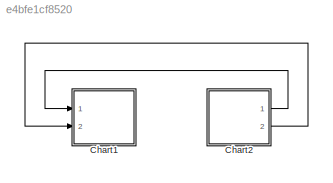
MODEL slx_e4bfe1cf8520
KIND model
CONFIG AbsTol = auto
CONFIG EnableMultiTasking = off
CONFIG FixedStep = auto
CONFIG MaxStep = auto
CONFIG MinStep = auto
CONFIG RelTol = 1e-3
CONFIG SampleTimeConstraint = Unconstrained
CONFIG Solver = VariableStepAuto
CONFIG SolverName = VariableStepAuto
CONFIG StartTime = 0.0
CONFIG StopTime = 0.6
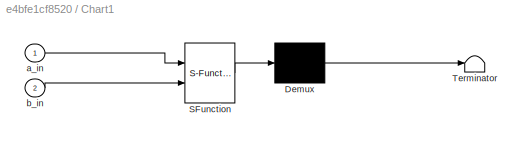
BLOCK [SubSystem] Chart1
  ErrorFcn = Stateflow.Translate.translate
  PermitHierarchicalResolution = ExplicitOnly
  Ports = [2]
  RequestExecContextInheritance = off
  SFBlockType = Chart
  TreatAsAtomicUnit = on
BLOCK [Demux] Chart1/ Demux 
  Outputs = 1
  Ports = [1, 1]
BLOCK [S-Function] Chart1/ SFunction 
  EnableBusSupport = on
  FunctionName = sf_sfun
  PortCounts = [2 1]
  Ports = [2, 1]
  SFcnIsStateOwnerBlock = off
  SFunctionDeploymentMode = off
  Tag = Stateflow S-Function 1
BLOCK [Terminator] Chart1/ Terminator 
BLOCK [Inport] Chart1/a_in
BLOCK [Inport] Chart1/b_in
  Port = 2
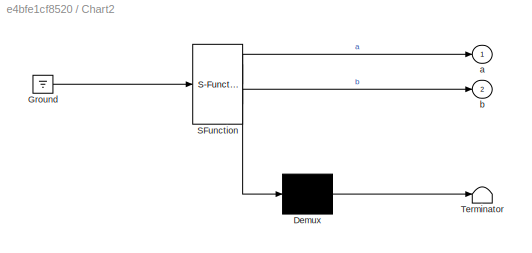
BLOCK [SubSystem] Chart2
  ErrorFcn = Stateflow.Translate.translate
  PermitHierarchicalResolution = ExplicitOnly
  Ports = [0, 2]
  RequestExecContextInheritance = off
  SFBlockType = Chart
  TreatAsAtomicUnit = on
BLOCK [Demux] Chart2/ Demux 
  Outputs = 1
  Ports = [1, 1]
BLOCK [Ground] Chart2/ Ground 
BLOCK [S-Function] Chart2/ SFunction 
  EnableBusSupport = on
  FunctionName = sf_sfun
  PortCounts = [1 3]
  Ports = [1, 3]
  SFcnIsStateOwnerBlock = off
  SFunctionDeploymentMode = off
  Tag = Stateflow S-Function 3
BLOCK [Terminator] Chart2/ Terminator 
BLOCK [Outport] Chart2/a
  VectorParamsAs1DForOutWhenUnconnected = off
BLOCK [Outport] Chart2/b
  Port = 2
  VectorParamsAs1DForOutWhenUnconnected = off
LINE Chart2:1 -> Chart1:1
LINE Chart2:2 -> Chart1:2
CHART Chart1 states=3 transitions=1
  STATE_LABEL 'f'
  STATE_LABEL 'SCRIPT:\nfunction f()\n  fprintf("%.0f %.0f\\n", a_in, b_in);\n'
  STATE_LABEL 'A1\nen: g("en_A1")\ndu: f()\n'
  STATE_LABEL 'g(s)'
  STATE_LABEL 'SCRIPT:\nfunction g(s)\n  fprintf(s+"\\n");\n\n'
CHART Chart2 states=3 transitions=3
  STATE_LABEL 'A\nen:\nf("en_A")\n'
  STATE_LABEL 'B\nen:\nf("en_B")'
  STATE_LABEL 'f(s)'
  STATE_LABEL 'SCRIPT:\nfunction f(s)\n  fprintf(s+"\\n");'
CHART  states=0 transitions=0
CHART  states=0 transitions=0
